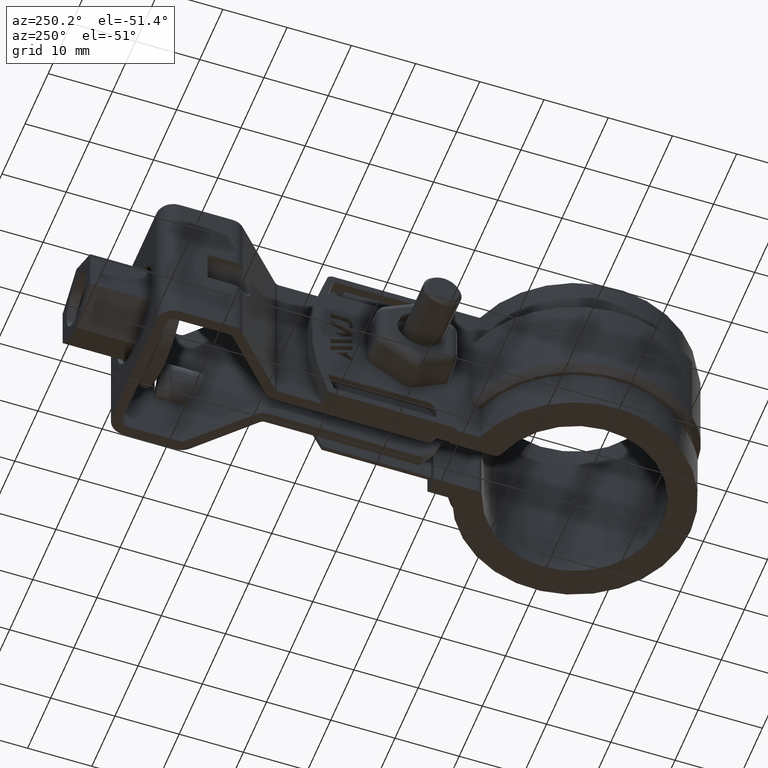
[diagram: clean part render]
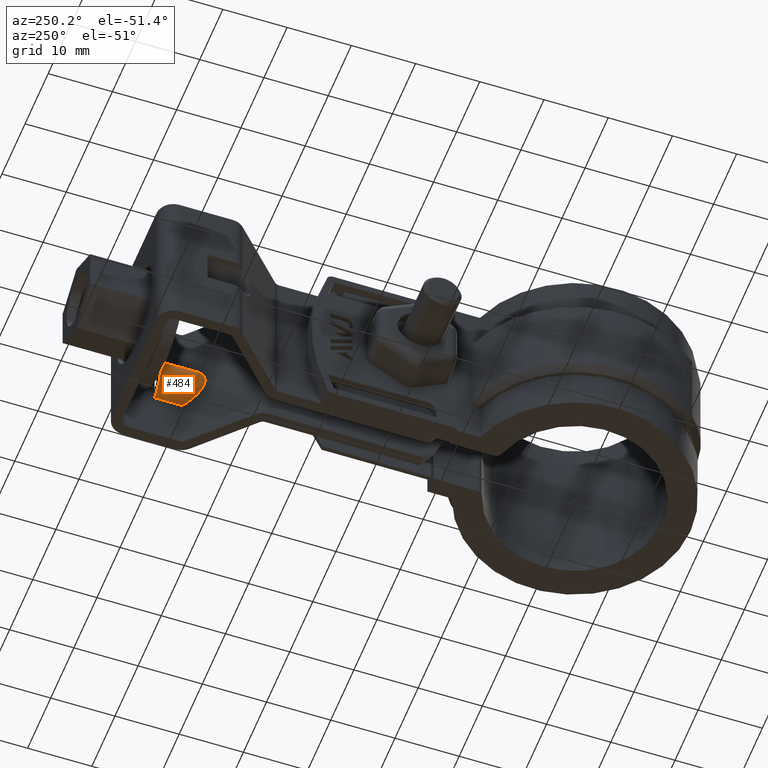
[diagram: same view with one face highlighted and labeled with its STEP entity id]
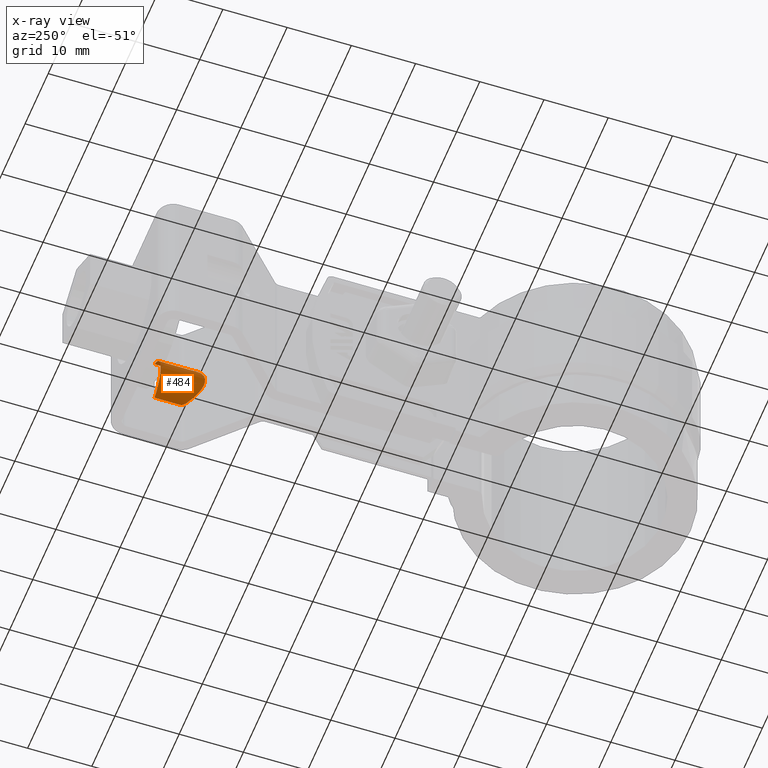
[diagram: x-ray of the same camera — body ghosted, the highlighted face saturated]
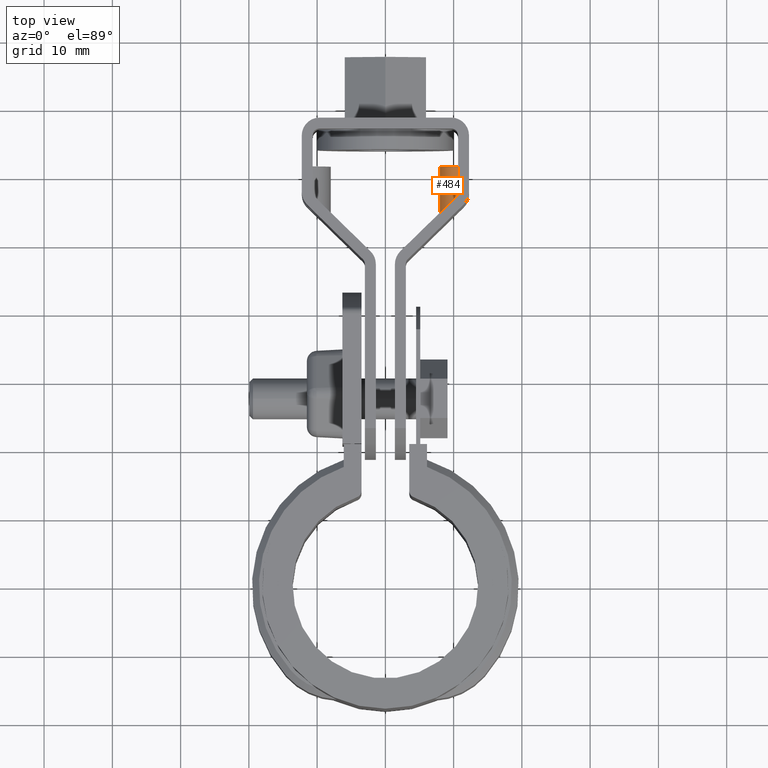
[diagram: same view with one face highlighted and labeled with its STEP entity id]
A machine part, auxiliary view. The second image highlights one B-rep face of the part: STEP entity #484.
The next image is the same camera in x-ray: the body ghosted, the highlighted face saturated — about 3% of this face is hidden behind the body in this view.
A second angle (top view) of the same face is appended — the face is thin or edge-on in the first view.
In plain terms, the highlighted cylindrical surface (edge-blend (fillet) strip) has radius 4.25 mm, axis along (-0, -1, -0).
Its self-contained STEP definition (entity closure, byte-faithful):
#484 = ADVANCED_FACE( '', ( #940 ), #941, .T. );
#940 = FACE_OUTER_BOUND( '', #2021, .T. );
#941 = CYLINDRICAL_SURFACE( '', #2022, 4.24999999999996 );
#2021 = EDGE_LOOP( '', ( #4291, #4292, #4293, #4294, #4295, #4296 ) );
#2022 = AXIS2_PLACEMENT_3D( '', #4297, #4298, #4299 );
#4291 = ORIENTED_EDGE( '', *, *, #6357, .F. );
#4292 = ORIENTED_EDGE( '', *, *, #6358, .F. );
#4293 = ORIENTED_EDGE( '', *, *, #6359, .F. );
#4294 = ORIENTED_EDGE( '', *, *, #6360, .F. );
#4295 = ORIENTED_EDGE( '', *, *, #6361, .T. );
#4296 = ORIENTED_EDGE( '', *, *, #6362, .F. );
#4297 = CARTESIAN_POINT( '', ( 12.2500001018538, 51.5992907648396, -12.4999999833221 ) );
#4298 = DIRECTION( '', ( -7.94778790044288E-010, -1.00000000000000, -1.31468003180933E-010 ) );
#4299 = DIRECTION( '', ( -3.82343921266954E-011, -1.31468003150545E-010, 1.00000000000000 ) );
#6357 = EDGE_CURVE( '', #7536, #7537, #7538, .T. );
#6358 = EDGE_CURVE( '', #7539, #7536, #7540, .T. );
#6359 = EDGE_CURVE( '', #7541, #7539, #7542, .T. );
#6360 = EDGE_CURVE( '', #7543, #7541, #7544, .F. );
#6361 = EDGE_CURVE( '', #7543, #7545, #7546, .T. );
#6362 = EDGE_CURVE( '', #7537, #7545, #7547, .T. );
#7536 = VERTEX_POINT( '', #10651 );
#7537 = VERTEX_POINT( '', #10652 );
#7538 = B_SPLINE_CURVE_WITH_KNOTS( '', 3, ( #10653, #10654, #10655, #10656, #10657, #10658 ), .UNSPECIFIED., .F., .F., ( 4, 2, 4 ), ( 1.73472347597679E-018, 0.000404290461596237, 0.000808580923192472 ), .UNSPECIFIED. );
#7539 = VERTEX_POINT( '', #10659 );
#7540 = ELLIPSE( '', #10660, 5.93756228945901, 4.24999999999996 );
#7541 = VERTEX_POINT( '', #10661 );
#7542 = B_SPLINE_CURVE_WITH_KNOTS( '', 3, ( #10662, #10663, #10664, #10665, #10666, #10667 ), .UNSPECIFIED., .F., .F., ( 4, 2, 4 ), ( 0.000000000000000, 0.000404110423349703, 0.000808220846699406 ), .UNSPECIFIED. );
#7543 = VERTEX_POINT( '', #10668 );
#7544 = LINE( '', #10669, #10670 );
#7545 = VERTEX_POINT( '', #10671 );
#7546 = CIRCLE( '', #10672, 4.24999999999996 );
#7547 = LINE( '', #10673, #10674 );
#10651 = CARTESIAN_POINT( '', ( 10.3483239418055, 56.9793145712225, -16.3008061820994 ) );
#10652 = CARTESIAN_POINT( '', ( 10.6500001068491, 57.6950965355192, -16.4373214071038 ) );
#10653 = CARTESIAN_POINT( '', ( 10.3483239418055, 56.9793145712225, -16.3008061820994 ) );
#10654 = CARTESIAN_POINT( '', ( 10.4403810066657, 57.0691263375262, -16.3468655486216 ) );
#10655 = CARTESIAN_POINT( '', ( 10.5165798595896, 57.1785716758160, -16.3808533617638 ) );
#10656 = CARTESIAN_POINT( '', ( 10.6216015749618, 57.4235288899909, -16.4260777867855 ) );
#10657 = CARTESIAN_POINT( '', ( 10.6500001067405, 57.5583718621265, -16.4373214071218 ) );
#10658 = CARTESIAN_POINT( '', ( 10.6500001068491, 57.6950965355192, -16.4373214071038 ) );
#10659 = CARTESIAN_POINT( '', ( 10.3483239415150, 56.9793145702232, -8.69919378327548 ) );
#10660 = AXIS2_PLACEMENT_3D( '', #12488, #12489, #12490 );
#10661 = CARTESIAN_POINT( '', ( 10.6500001065482, 57.6950965344839, -8.56267855805984 ) );
#10662 = CARTESIAN_POINT( '', ( 10.6500001065482, 57.6950965344839, -8.56267855805984 ) );
#10663 = CARTESIAN_POINT( '', ( 10.6500001064396, 57.5584207316975, -8.56267855807781 ) );
#10664 = CARTESIAN_POINT( '', ( 10.6217334148014, 57.4240307068445, -8.57386900854657 ) );
#10665 = CARTESIAN_POINT( '', ( 10.5168997563427, 57.1791243432996, -8.61900526198702 ) );
#10666 = CARTESIAN_POINT( '', ( 10.4403732911860, 57.0691188095047, -8.65313827689970 ) );
#10667 = CARTESIAN_POINT( '', ( 10.3483239415150, 56.9793145702232, -8.69919378327548 ) );
#10668 = CARTESIAN_POINT( '', ( 10.6500001096512, 61.5992907655936, -8.56267855754657 ) );
#10669 = CARTESIAN_POINT( '', ( 10.6500000977295, 46.5992907655939, -8.56267855951857 ) );
#10670 = VECTOR( '', #12491, 1000.00000000000 );
#10671 = CARTESIAN_POINT( '', ( 10.6500001099521, 61.5992907666289, -16.4373214065905 ) );
#10672 = AXIS2_PLACEMENT_3D( '', #12492, #12493, #12494 );
#10673 = CARTESIAN_POINT( '', ( 10.6500000980304, 46.5992907666291, -16.4373214085626 ) );
#10674 = VECTOR( '', #12495, 1000.00000000000 );
#12488 = CARTESIAN_POINT( '', ( 12.2500001076043, 58.8346083024121, -12.4999999823709 ) );
#12489 = DIRECTION( '', ( 0.698323834961611, -0.715781965073520, -6.74171421275959E-011 ) );
#12490 = DIRECTION( '', ( 0.715781965073520, 0.698323834961611, 1.19159657042789E-010 ) );
#12491 = DIRECTION( '', ( 7.94778790044288E-010, 1.00000000000000, 1.31468003180933E-010 ) );
#12492 = CARTESIAN_POINT( '', ( 12.2500001098016, 61.5992907648396, -12.4999999820074 ) );
#12493 = DIRECTION( '', ( -7.94778790044288E-010, -1.00000000000000, -1.31468003180933E-010 ) );
#12494 = DIRECTION( '', ( -3.82131672747541E-011, -1.31468003150562E-010, 1.00000000000000 ) );
#12495 = DIRECTION( '', ( 7.94778790044288E-010, 1.00000000000000, 1.31468003180933E-010 ) );